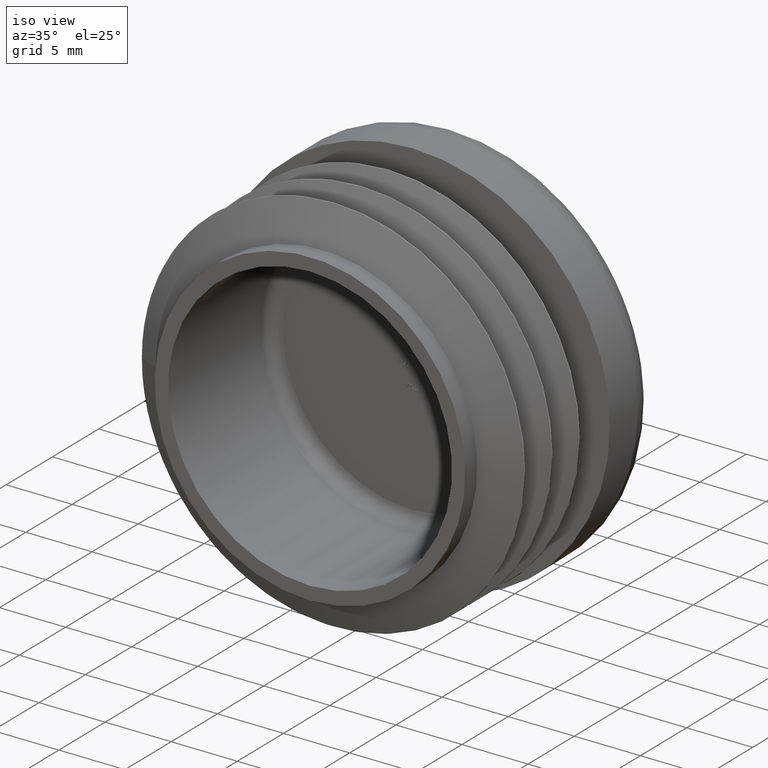
[diagram: clean part render]
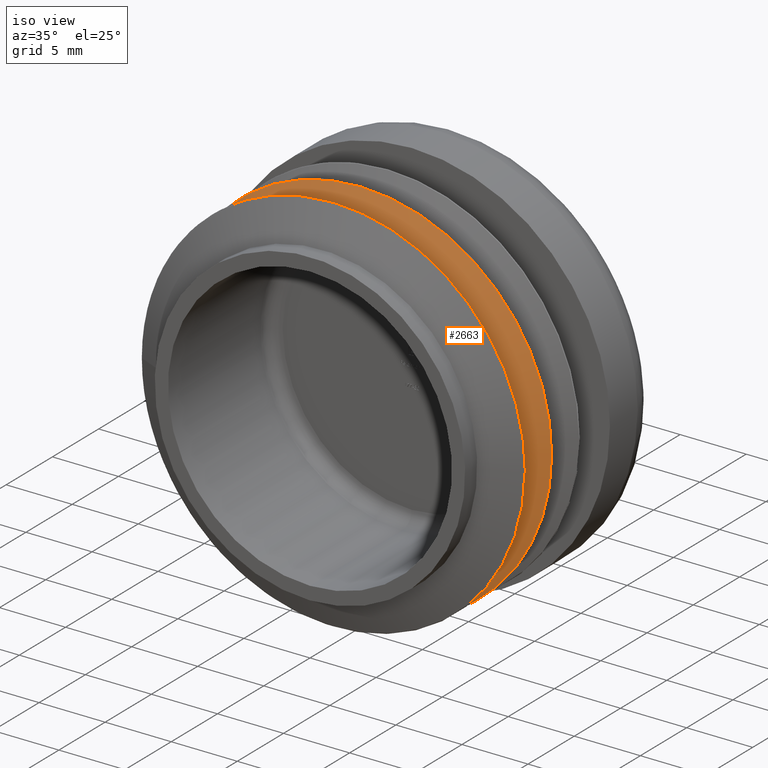
[diagram: same view with one face highlighted and labeled with its STEP entity id]
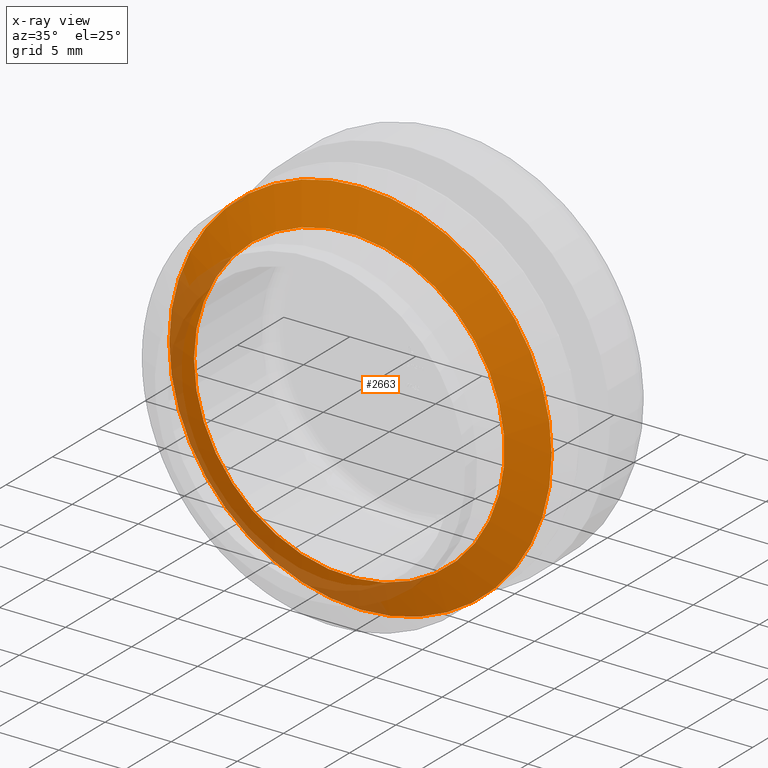
[diagram: x-ray of the same camera — body ghosted, the highlighted face saturated]
A machine part, iso view. The second image highlights one B-rep face of the part: STEP entity #2663.
The next image is the same camera in x-ray: the body ghosted, the highlighted face saturated — about 14% of this face is hidden behind the body in this view.
In plain terms, the highlighted conical surface has half-angle 66.121 deg.
Its self-contained STEP definition (entity closure, byte-faithful):
#328 = FACE_BOUND ( 'NONE', #6831, .T. ) ;
#993 = FACE_OUTER_BOUND ( 'NONE', #1819, .T. ) ;
#1716 = CARTESIAN_POINT ( 'NONE',  ( -4.451638707024978935E-14, 4.249999999999984013, 0.000000000000000000 ) ) ;
#1819 = EDGE_LOOP ( 'NONE', ( #4244 ) ) ;
#2290 = DIRECTION ( 'NONE',  ( 1.047444401652940164E-14, -1.000000000000000000, -0.000000000000000000 ) ) ;
#2443 = ORIENTED_EDGE ( 'NONE', *, *, #7310, .T. ) ;
#2571 = CARTESIAN_POINT ( 'NONE',  ( -4.451638707025014276E-14, 4.250000000000017764, 0.000000000000000000 ) ) ;
#2663 = ADVANCED_FACE ( 'NONE', ( #993, #328 ), #3978, .T. ) ;
#3252 = DIRECTION ( 'NONE',  ( -1.047444401652940164E-14, 1.000000000000000000, 0.000000000000000000 ) ) ;
#3423 = DIRECTION ( 'NONE',  ( -1.047444401652940164E-14, 1.000000000000000000, 0.000000000000000000 ) ) ;
#3941 = CIRCLE ( 'NONE', #10820, 14.47024071558981184 ) ;
#3978 = CONICAL_SURFACE ( 'NONE', #4865, 11.75000000000007638, 1.154020576637835083 ) ;
#3984 = EDGE_CURVE ( 'NONE', #10652, #10652, #3941, .T. ) ;
#4244 = ORIENTED_EDGE ( 'NONE', *, *, #3984, .T. ) ;
#4865 = AXIS2_PLACEMENT_3D ( 'NONE', #2571, #3252, #6012 ) ;
#4868 = CIRCLE ( 'NONE', #10383, 11.75000000000000000 ) ;
#5092 = CARTESIAN_POINT ( 'NONE',  ( 14.47024071558975500, 5.454280054326364535, 0.000000000000000000 ) ) ;
#6012 = DIRECTION ( 'NONE',  ( -1.000000000000000000, -1.048215887611510708E-14, 0.000000000000000000 ) ) ;
#6831 = EDGE_LOOP ( 'NONE', ( #2443 ) ) ;
#7310 = EDGE_CURVE ( 'NONE', #10239, #10239, #4868, .T. ) ;
#7330 = CARTESIAN_POINT ( 'NONE',  ( -5.713055107951285040E-14, 5.454280054326212657, 0.000000000000000000 ) ) ;
#8646 = CARTESIAN_POINT ( 'NONE',  ( -11.75000000000004441, 4.249999999999860556, 0.000000000000000000 ) ) ;
#9208 = DIRECTION ( 'NONE',  ( 1.000000000000000000, 1.048968756853079617E-14, 0.000000000000000000 ) ) ;
#10239 = VERTEX_POINT ( 'NONE', #8646 ) ;
#10328 = DIRECTION ( 'NONE',  ( -1.000000000000000000, -1.048215887611517492E-14, 0.000000000000000000 ) ) ;
#10383 = AXIS2_PLACEMENT_3D ( 'NONE', #1716, #3423, #10328 ) ;
#10652 = VERTEX_POINT ( 'NONE', #5092 ) ;
#10820 = AXIS2_PLACEMENT_3D ( 'NONE', #7330, #2290, #9208 ) ;